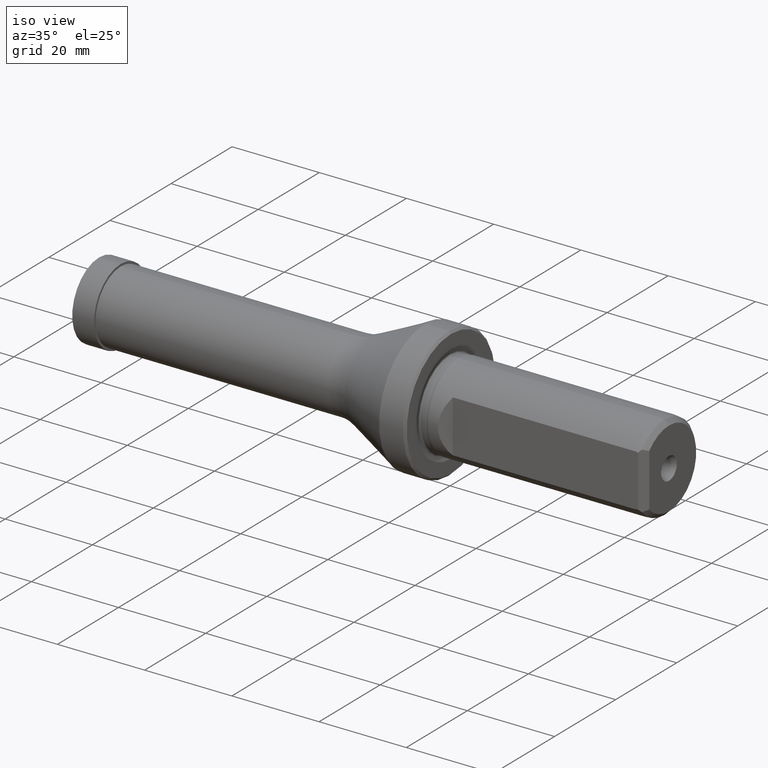
[diagram: clean part render]
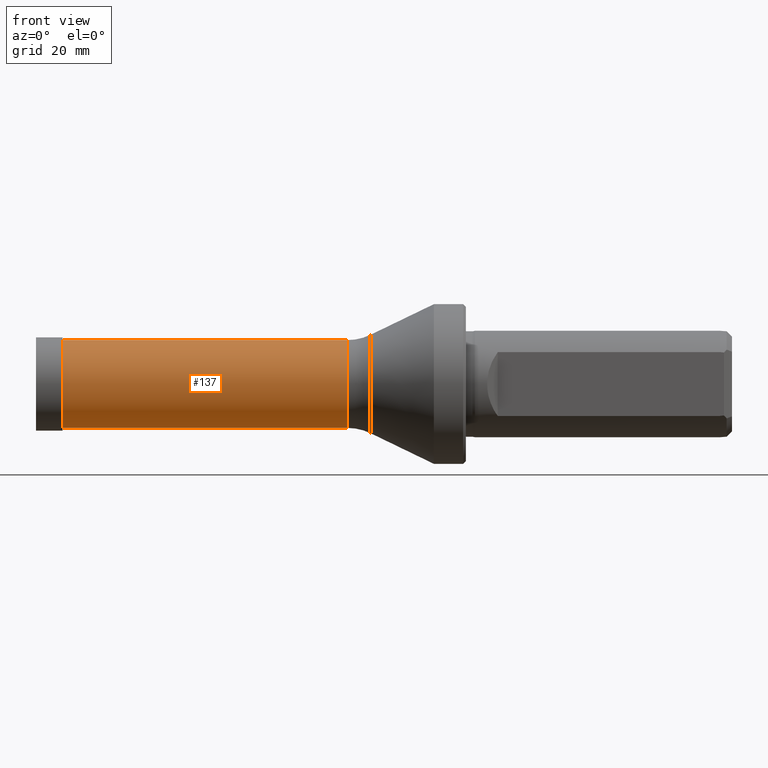
[diagram: tour spotlight — one face highlighted and labeled with its STEP entity id]
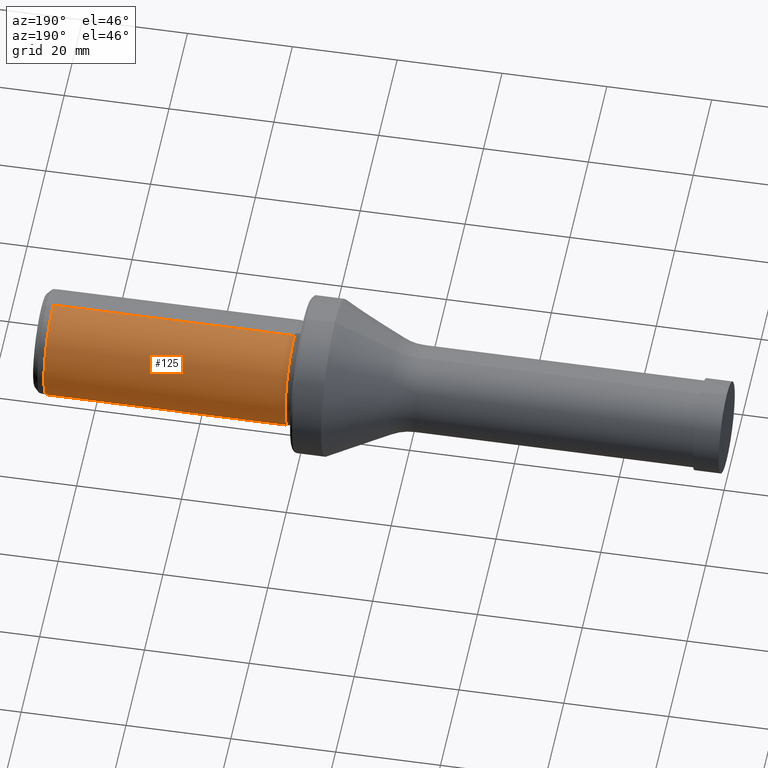
[diagram: tour spotlight — one face highlighted and labeled with its STEP entity id]
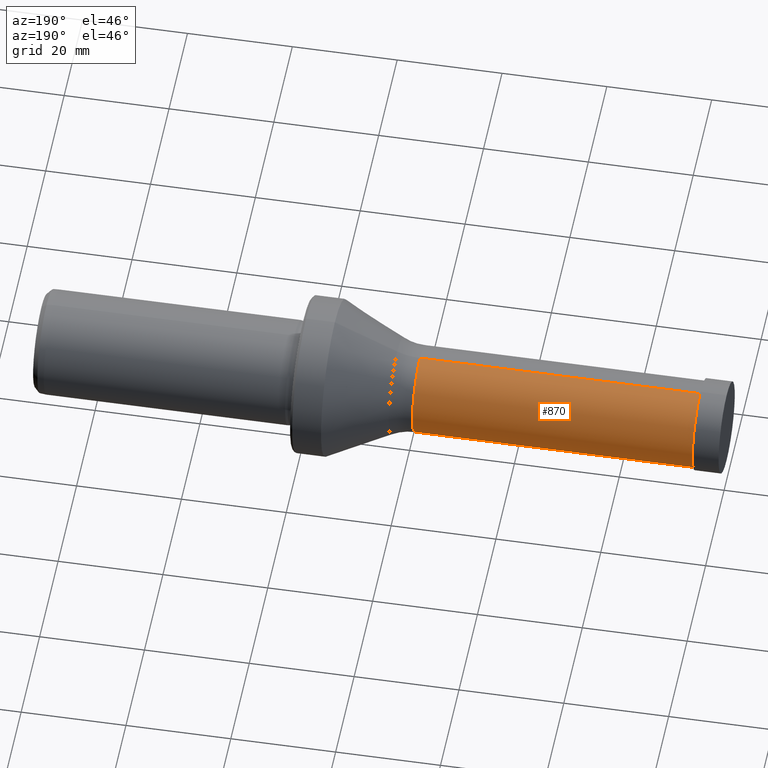
[diagram: tour spotlight — one face highlighted and labeled with its STEP entity id]
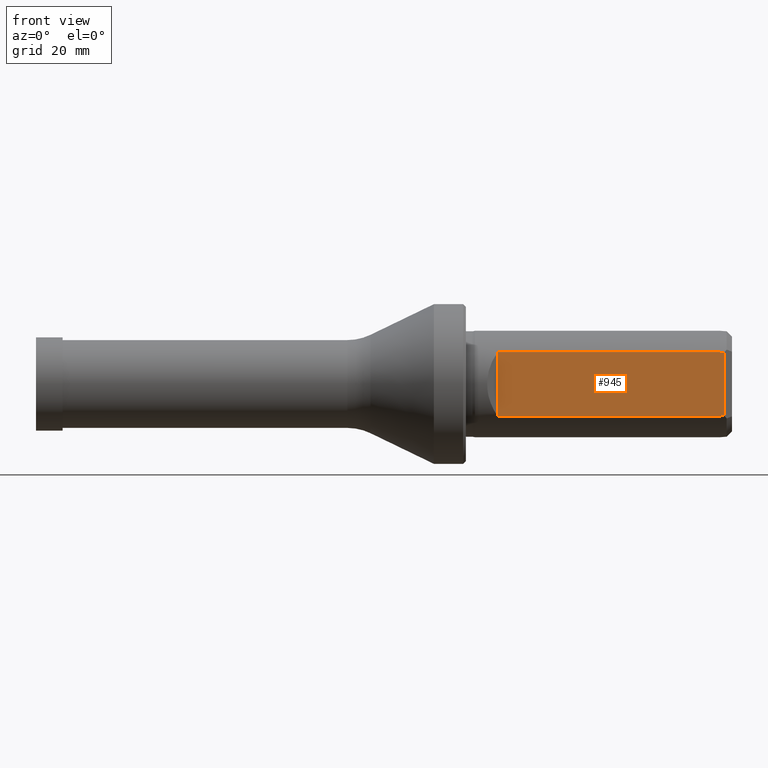
[diagram: tour spotlight — one face highlighted and labeled with its STEP entity id]
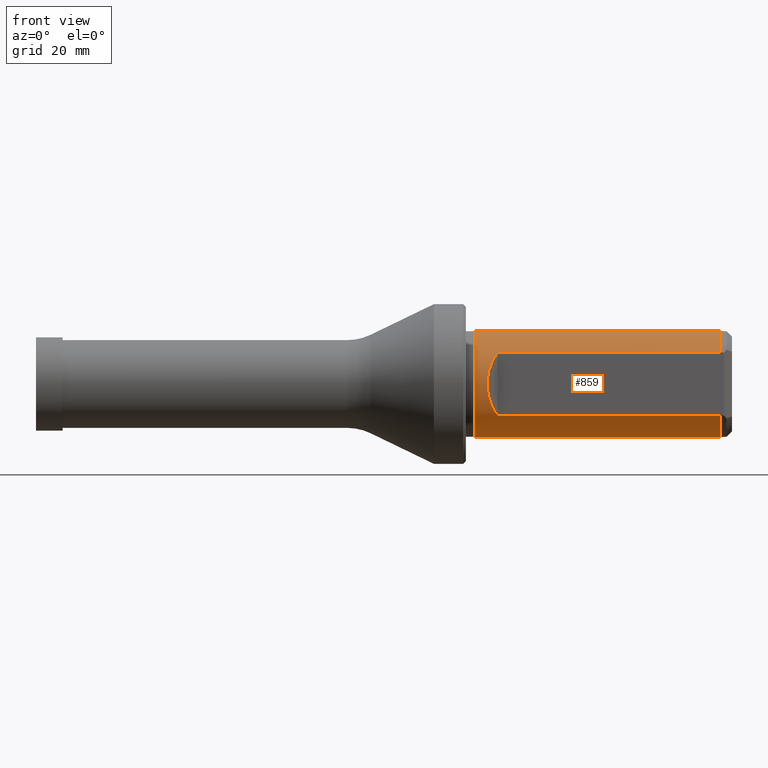
[diagram: tour spotlight — one face highlighted and labeled with its STEP entity id]
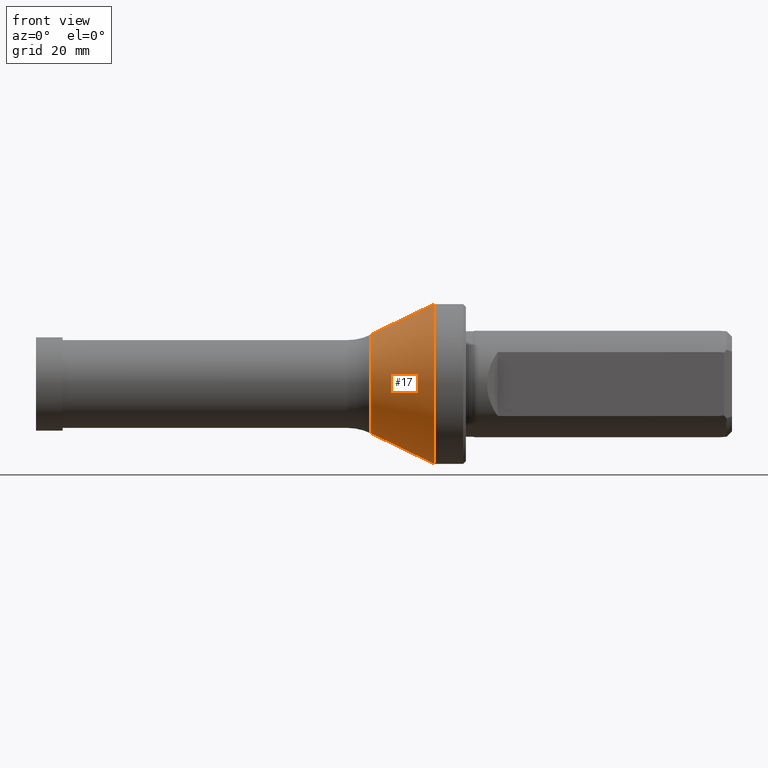
[diagram: tour spotlight — one face highlighted and labeled with its STEP entity id]
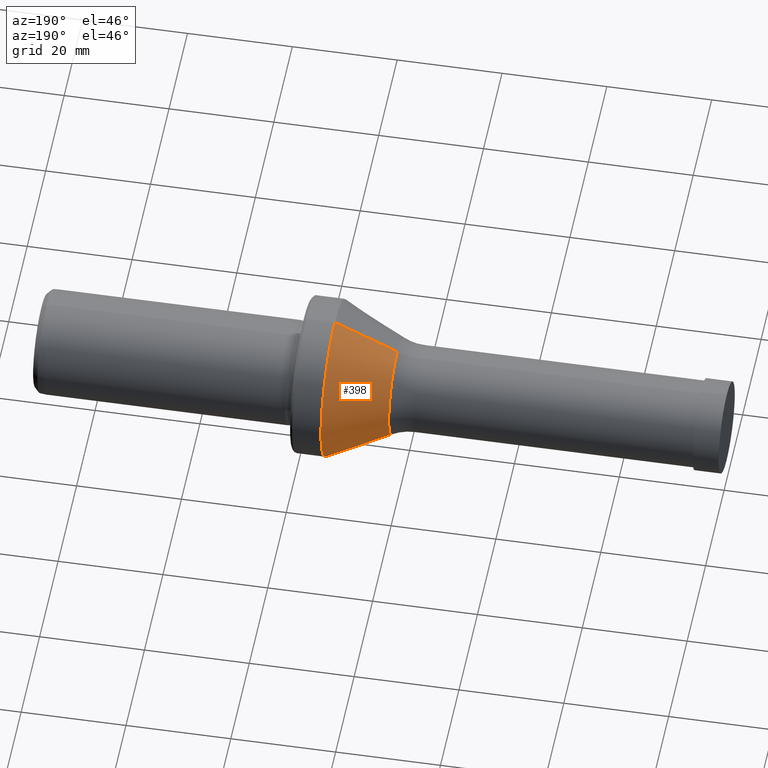
[diagram: tour spotlight — one face highlighted and labeled with its STEP entity id]
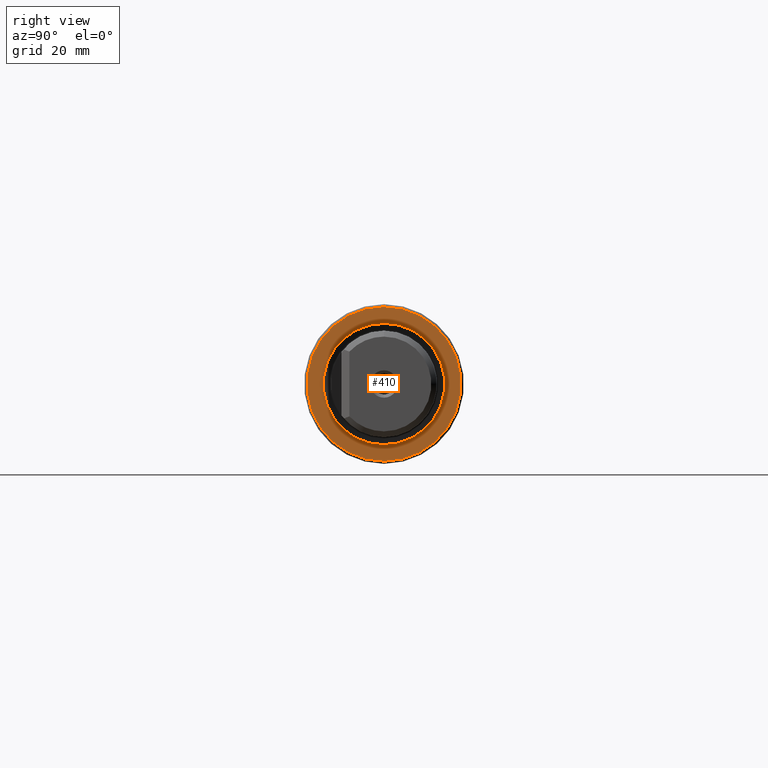
[diagram: tour spotlight — one face highlighted and labeled with its STEP entity id]
A machine part: a face-by-face anatomy tour. The part has 45 B-rep faces; the first image is the clean iso view, then the 8 largest visible faces are spotlighted one at a time (largest first), each with its STEP entity span.

Face 1 — front view, entity #137. In plain terms, the highlighted cylindrical surface (partial cylindrical patch) has radius 8.25 mm, axis along (-1, -0, -0).
Definition (entity closure, byte-faithful):
#8 = ORIENTED_EDGE ( 'NONE', *, *, #1138, .F. ) ;
#12 = VERTEX_POINT ( 'NONE', #141 ) ;
#18 = CARTESIAN_POINT ( 'NONE',  ( 4.500000000000000000, 0.0000000000000000000, 0.0000000000000000000 ) ) ;
#38 = VERTEX_POINT ( 'NONE', #933 ) ;
#59 = DIRECTION ( 'NONE',  ( 0.0000000000000000000, 0.0000000000000000000, 1.000000000000000000 ) ) ;
#137 = ADVANCED_FACE ( 'NONE', ( #457 ), #210, .T. ) ;
#141 = CARTESIAN_POINT ( 'NONE',  ( 4.500000000000000000, 1.010333609296566500E-015, -8.250000000000000000 ) ) ;
#154 = VERTEX_POINT ( 'NONE', #409 ) ;
#210 = CYLINDRICAL_SURFACE ( 'NONE', #572, 8.250000000000000000 ) ;
#254 = EDGE_CURVE ( 'NONE', #38, #154, #531, .T. ) ;
#269 = CARTESIAN_POINT ( 'NONE',  ( 4.500000000000000000, 0.0000000000000000000, 8.250000000000000000 ) ) ;
#272 = DIRECTION ( 'NONE',  ( 0.0000000000000000000, 0.0000000000000000000, 1.000000000000000000 ) ) ;
#286 = AXIS2_PLACEMENT_3D ( 'NONE', #18, #982, #59 ) ;
#409 = CARTESIAN_POINT ( 'NONE',  ( 57.99799999999999000, 0.0000000000000000000, 8.250000000000000000 ) ) ;
#423 = DIRECTION ( 'NONE',  ( -1.000000000000000000, -0.0000000000000000000, -0.0000000000000000000 ) ) ;
#425 = EDGE_CURVE ( 'NONE', #12, #914, #1116, .T. ) ;
#457 = FACE_OUTER_BOUND ( 'NONE', #1003, .T. ) ;
#531 = CIRCLE ( 'NONE', #889, 8.250000000000000000 ) ;
#544 = ORIENTED_EDGE ( 'NONE', *, *, #1153, .T. ) ;
#558 = DIRECTION ( 'NONE',  ( -1.000000000000000000, -0.0000000000000000000, -0.0000000000000000000 ) ) ;
#572 = AXIS2_PLACEMENT_3D ( 'NONE', #789, #624, #272 ) ;
#595 = DIRECTION ( 'NONE',  ( 0.0000000000000000000, 0.0000000000000000000, 1.000000000000000000 ) ) ;
#624 = DIRECTION ( 'NONE',  ( -1.000000000000000000, -0.0000000000000000000, -0.0000000000000000000 ) ) ;
#651 = ORIENTED_EDGE ( 'NONE', *, *, #254, .T. ) ;
#777 = DIRECTION ( 'NONE',  ( -1.000000000000000000, -0.0000000000000000000, -0.0000000000000000000 ) ) ;
#789 = CARTESIAN_POINT ( 'NONE',  ( 0.0000000000000000000, 0.0000000000000000000, 0.0000000000000000000 ) ) ;
#889 = AXIS2_PLACEMENT_3D ( 'NONE', #1182, #423, #595 ) ;
#914 = VERTEX_POINT ( 'NONE', #269 ) ;
#917 = CARTESIAN_POINT ( 'NONE',  ( 0.0000000000000000000, 1.010333609296566500E-015, -8.250000000000000000 ) ) ;
#933 = CARTESIAN_POINT ( 'NONE',  ( 57.99799999999999000, 1.010333609296566500E-015, -8.250000000000000000 ) ) ;
#951 = ORIENTED_EDGE ( 'NONE', *, *, #425, .F. ) ;
#982 = DIRECTION ( 'NONE',  ( -1.000000000000000000, 0.0000000000000000000, 0.0000000000000000000 ) ) ;
#1003 = EDGE_LOOP ( 'NONE', ( #8, #651, #544, #951 ) ) ;
#1116 = CIRCLE ( 'NONE', #286, 8.250000000000000000 ) ;
#1138 = EDGE_CURVE ( 'NONE', #38, #12, #1144, .T. ) ;
#1140 = VECTOR ( 'NONE', #777, 1000.000000000000000 ) ;
#1144 = LINE ( 'NONE', #917, #1178 ) ;
#1153 = EDGE_CURVE ( 'NONE', #154, #914, #1163, .T. ) ;
#1163 = LINE ( 'NONE', #1185, #1140 ) ;
#1178 = VECTOR ( 'NONE', #558, 1000.000000000000000 ) ;
#1182 = CARTESIAN_POINT ( 'NONE',  ( 57.99799999999999000, 0.0000000000000000000, 0.0000000000000000000 ) ) ;
#1185 = CARTESIAN_POINT ( 'NONE',  ( 0.0000000000000000000, 0.0000000000000000000, 8.250000000000000000 ) ) ;

Face 2 — auxiliary view, entity #125. In plain terms, the highlighted cylindrical surface (partial cylindrical patch) has radius 10 mm, axis along (-1, -0, -0).
Definition (entity closure, byte-faithful):
#87 = DIRECTION ( 'NONE',  ( -1.000000000000000000, -0.0000000000000000000, -0.0000000000000000000 ) ) ;
#101 = ORIENTED_EDGE ( 'NONE', *, *, #131, .T. ) ;
#112 = CARTESIAN_POINT ( 'NONE',  ( 128.0000000000001700, 0.0000000000000000000, 0.0000000000000000000 ) ) ;
#125 = ADVANCED_FACE ( 'NONE', ( #1037 ), #736, .T. ) ;
#131 = EDGE_CURVE ( 'NONE', #577, #668, #682, .T. ) ;
#133 = CARTESIAN_POINT ( 'NONE',  ( 128.0000000000001700, 0.0000000000000000000, 10.00000000000000000 ) ) ;
#160 = DIRECTION ( 'NONE',  ( 0.0000000000000000000, 0.0000000000000000000, 1.000000000000000000 ) ) ;
#217 = ORIENTED_EDGE ( 'NONE', *, *, #229, .T. ) ;
#225 = VECTOR ( 'NONE', #740, 1000.000000000000000 ) ;
#229 = EDGE_CURVE ( 'NONE', #1220, #1125, #701, .T. ) ;
#253 = CARTESIAN_POINT ( 'NONE',  ( 81.97953698905210700, 0.0000000000000000000, -10.00000000000000000 ) ) ;
#275 = LINE ( 'NONE', #1134, #225 ) ;
#367 = CARTESIAN_POINT ( 'NONE',  ( -0.5000000000000005600, 0.0000000000000000000, 10.00000000000000000 ) ) ;
#371 = DIRECTION ( 'NONE',  ( -1.000000000000000000, -0.0000000000000000000, -0.0000000000000000000 ) ) ;
#449 = AXIS2_PLACEMENT_3D ( 'NONE', #971, #371, #667 ) ;
#478 = AXIS2_PLACEMENT_3D ( 'NONE', #1218, #867, #728 ) ;
#480 = LINE ( 'NONE', #367, #985 ) ;
#507 = EDGE_CURVE ( 'NONE', #1220, #668, #480, .T. ) ;
#577 = VERTEX_POINT ( 'NONE', #253 ) ;
#614 = CARTESIAN_POINT ( 'NONE',  ( 128.0000000000001700, 1.224646799147353300E-015, -10.00000000000000000 ) ) ;
#649 = DIRECTION ( 'NONE',  ( -1.000000000000000000, -0.0000000000000000000, -0.0000000000000000000 ) ) ;
#667 = DIRECTION ( 'NONE',  ( 0.0000000000000000000, 0.0000000000000000000, 1.000000000000000000 ) ) ;
#668 = VERTEX_POINT ( 'NONE', #1008 ) ;
#672 = EDGE_LOOP ( 'NONE', ( #217, #1193, #101, #831 ) ) ;
#682 = CIRCLE ( 'NONE', #478, 10.00000000000000000 ) ;
#701 = CIRCLE ( 'NONE', #909, 10.00000000000000000 ) ;
#728 = DIRECTION ( 'NONE',  ( 0.0000000000000000000, 0.0000000000000000000, -1.000000000000000000 ) ) ;
#736 = CYLINDRICAL_SURFACE ( 'NONE', #449, 10.00000000000000000 ) ;
#740 = DIRECTION ( 'NONE',  ( -1.000000000000000000, -0.0000000000000000000, -0.0000000000000000000 ) ) ;
#831 = ORIENTED_EDGE ( 'NONE', *, *, #507, .F. ) ;
#867 = DIRECTION ( 'NONE',  ( 1.000000000000000000, -0.0000000000000000000, -0.0000000000000000000 ) ) ;
#909 = AXIS2_PLACEMENT_3D ( 'NONE', #112, #87, #160 ) ;
#915 = EDGE_CURVE ( 'NONE', #1125, #577, #275, .T. ) ;
#971 = CARTESIAN_POINT ( 'NONE',  ( -0.5000000000000005600, 0.0000000000000000000, 0.0000000000000000000 ) ) ;
#985 = VECTOR ( 'NONE', #649, 1000.000000000000000 ) ;
#1008 = CARTESIAN_POINT ( 'NONE',  ( 81.97953698905210700, 1.224646799147353500E-015, 10.00000000000000000 ) ) ;
#1037 = FACE_OUTER_BOUND ( 'NONE', #672, .T. ) ;
#1125 = VERTEX_POINT ( 'NONE', #614 ) ;
#1134 = CARTESIAN_POINT ( 'NONE',  ( -0.5000000000000005600, 1.224646799147353300E-015, -10.00000000000000000 ) ) ;
#1193 = ORIENTED_EDGE ( 'NONE', *, *, #915, .T. ) ;
#1218 = CARTESIAN_POINT ( 'NONE',  ( 81.97953698905210700, 0.0000000000000000000, 0.0000000000000000000 ) ) ;
#1220 = VERTEX_POINT ( 'NONE', #133 ) ;

Face 3 — auxiliary view, entity #870. In plain terms, the highlighted cylindrical surface (partial cylindrical patch) has radius 8.25 mm, axis along (-1, -0, -0).
Definition (entity closure, byte-faithful):
#12 = VERTEX_POINT ( 'NONE', #141 ) ;
#38 = VERTEX_POINT ( 'NONE', #933 ) ;
#68 = ORIENTED_EDGE ( 'NONE', *, *, #1138, .T. ) ;
#71 = ORIENTED_EDGE ( 'NONE', *, *, #340, .T. ) ;
#90 = DIRECTION ( 'NONE',  ( -1.000000000000000000, 0.0000000000000000000, 0.0000000000000000000 ) ) ;
#122 = CIRCLE ( 'NONE', #977, 8.250000000000000000 ) ;
#141 = CARTESIAN_POINT ( 'NONE',  ( 4.500000000000000000, 1.010333609296566500E-015, -8.250000000000000000 ) ) ;
#154 = VERTEX_POINT ( 'NONE', #409 ) ;
#170 = DIRECTION ( 'NONE',  ( 0.0000000000000000000, 0.0000000000000000000, 1.000000000000000000 ) ) ;
#223 = EDGE_CURVE ( 'NONE', #914, #12, #122, .T. ) ;
#269 = CARTESIAN_POINT ( 'NONE',  ( 4.500000000000000000, 0.0000000000000000000, 8.250000000000000000 ) ) ;
#339 = DIRECTION ( 'NONE',  ( 0.0000000000000000000, 0.0000000000000000000, 1.000000000000000000 ) ) ;
#340 = EDGE_CURVE ( 'NONE', #154, #38, #879, .T. ) ;
#408 = DIRECTION ( 'NONE',  ( 0.0000000000000000000, 0.0000000000000000000, 1.000000000000000000 ) ) ;
#409 = CARTESIAN_POINT ( 'NONE',  ( 57.99799999999999000, 0.0000000000000000000, 8.250000000000000000 ) ) ;
#424 = CYLINDRICAL_SURFACE ( 'NONE', #1009, 8.250000000000000000 ) ;
#434 = ORIENTED_EDGE ( 'NONE', *, *, #1153, .F. ) ;
#448 = DIRECTION ( 'NONE',  ( -1.000000000000000000, -0.0000000000000000000, -0.0000000000000000000 ) ) ;
#558 = DIRECTION ( 'NONE',  ( -1.000000000000000000, -0.0000000000000000000, -0.0000000000000000000 ) ) ;
#575 = ORIENTED_EDGE ( 'NONE', *, *, #223, .F. ) ;
#697 = FACE_OUTER_BOUND ( 'NONE', #709, .T. ) ;
#700 = AXIS2_PLACEMENT_3D ( 'NONE', #1117, #448, #170 ) ;
#709 = EDGE_LOOP ( 'NONE', ( #71, #68, #575, #434 ) ) ;
#777 = DIRECTION ( 'NONE',  ( -1.000000000000000000, -0.0000000000000000000, -0.0000000000000000000 ) ) ;
#792 = DIRECTION ( 'NONE',  ( -1.000000000000000000, -0.0000000000000000000, -0.0000000000000000000 ) ) ;
#870 = ADVANCED_FACE ( 'NONE', ( #697 ), #424, .T. ) ;
#879 = CIRCLE ( 'NONE', #700, 8.250000000000000000 ) ;
#914 = VERTEX_POINT ( 'NONE', #269 ) ;
#917 = CARTESIAN_POINT ( 'NONE',  ( 0.0000000000000000000, 1.010333609296566500E-015, -8.250000000000000000 ) ) ;
#933 = CARTESIAN_POINT ( 'NONE',  ( 57.99799999999999000, 1.010333609296566500E-015, -8.250000000000000000 ) ) ;
#977 = AXIS2_PLACEMENT_3D ( 'NONE', #1212, #90, #339 ) ;
#1009 = AXIS2_PLACEMENT_3D ( 'NONE', #1111, #792, #408 ) ;
#1111 = CARTESIAN_POINT ( 'NONE',  ( 0.0000000000000000000, 0.0000000000000000000, 0.0000000000000000000 ) ) ;
#1117 = CARTESIAN_POINT ( 'NONE',  ( 57.99799999999999000, 0.0000000000000000000, 0.0000000000000000000 ) ) ;
#1138 = EDGE_CURVE ( 'NONE', #38, #12, #1144, .T. ) ;
#1140 = VECTOR ( 'NONE', #777, 1000.000000000000000 ) ;
#1144 = LINE ( 'NONE', #917, #1178 ) ;
#1153 = EDGE_CURVE ( 'NONE', #154, #914, #1163, .T. ) ;
#1163 = LINE ( 'NONE', #1185, #1140 ) ;
#1178 = VECTOR ( 'NONE', #558, 1000.000000000000000 ) ;
#1185 = CARTESIAN_POINT ( 'NONE',  ( 0.0000000000000000000, 0.0000000000000000000, 8.250000000000000000 ) ) ;
#1212 = CARTESIAN_POINT ( 'NONE',  ( 4.500000000000000000, 0.0000000000000000000, 0.0000000000000000000 ) ) ;

Face 4 — front view, entity #945. In plain terms, the highlighted planar face has unit normal (0, 1, 0).
Definition (entity closure, byte-faithful):
#28 = B_SPLINE_CURVE_WITH_KNOTS ( 'NONE', 3,
 ( #657, #124, #110, #643 ),
 .UNSPECIFIED., .F., .F.,
 ( 4, 4 ),
 ( 0.01829642709403095000, 0.01905308713919414200 ),
 .UNSPECIFIED. ) ;
#30 = DIRECTION ( 'NONE',  ( -0.0000000000000000000, -0.0000000000000000000, 1.000000000000000000 ) ) ;
#33 = EDGE_CURVE ( 'NONE', #1059, #547, #862, .T. ) ;
#34 = CARTESIAN_POINT ( 'NONE',  ( 128.2500230110917400, -7.999999999999998200, -5.966663598521138900 ) ) ;
#41 = CARTESIAN_POINT ( 'NONE',  ( 86.25000000000001400, -7.999999999999989300, -6.000000000000043500 ) ) ;
#47 = ORIENTED_EDGE ( 'NONE', *, *, #869, .F. ) ;
#64 = CARTESIAN_POINT ( 'NONE',  ( 127.9999999999805500, -7.999999999999998200, -6.000000000002616600 ) ) ;
#92 = VERTEX_POINT ( 'NONE', #240 ) ;
#110 = CARTESIAN_POINT ( 'NONE',  ( 128.5000293310093600, -7.999999999999998200, 5.933151661774250100 ) ) ;
#124 = CARTESIAN_POINT ( 'NONE',  ( 128.2500258343678800, -7.999999999999998200, 5.966663222084309700 ) ) ;
#155 = DIRECTION ( 'NONE',  ( -1.000000000000000000, -0.0000000000000000000, -0.0000000000000000000 ) ) ;
#240 = CARTESIAN_POINT ( 'NONE',  ( 86.25000000000001400, -7.999999999999989300, 6.000000000000032900 ) ) ;
#262 = PLANE ( 'NONE',  #1187 ) ;
#276 = CARTESIAN_POINT ( 'NONE',  ( 128.7500000000000300, -7.999999999999998200, -5.899457602186857700 ) ) ;
#280 = FACE_OUTER_BOUND ( 'NONE', #551, .T. ) ;
#282 = CARTESIAN_POINT ( 'NONE',  ( 128.0000000000001400, -7.999999999999998200, 6.000000000000005300 ) ) ;
#325 = ORIENTED_EDGE ( 'NONE', *, *, #510, .F. ) ;
#362 = EDGE_CURVE ( 'NONE', #863, #547, #963, .T. ) ;
#414 = EDGE_CURVE ( 'NONE', #422, #92, #665, .T. ) ;
#421 = LINE ( 'NONE', #787, #687 ) ;
#422 = VERTEX_POINT ( 'NONE', #282 ) ;
#436 = ORIENTED_EDGE ( 'NONE', *, *, #362, .F. ) ;
#454 = ORIENTED_EDGE ( 'NONE', *, *, #33, .T. ) ;
#498 = VECTOR ( 'NONE', #1093, 1000.000000000000000 ) ;
#503 = CARTESIAN_POINT ( 'NONE',  ( 128.7500000000000300, -7.999999999999998200, -13.99999999999999800 ) ) ;
#510 = EDGE_CURVE ( 'NONE', #1059, #92, #421, .T. ) ;
#529 = DIRECTION ( 'NONE',  ( 1.000000000000000000, 0.0000000000000000000, 0.0000000000000000000 ) ) ;
#547 = VERTEX_POINT ( 'NONE', #64 ) ;
#551 = EDGE_LOOP ( 'NONE', ( #454, #436, #733, #47, #617, #325 ) ) ;
#584 = CARTESIAN_POINT ( 'NONE',  ( -0.5000000000000022200, -7.999999999999968900, 6.000000000000040000 ) ) ;
#617 = ORIENTED_EDGE ( 'NONE', *, *, #414, .T. ) ;
#640 = CARTESIAN_POINT ( 'NONE',  ( 128.7500000000000300, -7.999999999999998200, 5.899457602186855900 ) ) ;
#643 = CARTESIAN_POINT ( 'NONE',  ( 128.7500000000000300, -7.999999999999998200, 5.899457602186855900 ) ) ;
#657 = CARTESIAN_POINT ( 'NONE',  ( 128.0000000000001400, -7.999999999999998200, 6.000000000000005300 ) ) ;
#665 = LINE ( 'NONE', #584, #918 ) ;
#677 = VERTEX_POINT ( 'NONE', #640 ) ;
#679 = EDGE_CURVE ( 'NONE', #863, #677, #1095, .T. ) ;
#687 = VECTOR ( 'NONE', #30, 1000.000000000000000 ) ;
#706 = CARTESIAN_POINT ( 'NONE',  ( 128.5000244501772500, -7.999999999999998200, -5.933152319671626700 ) ) ;
#733 = ORIENTED_EDGE ( 'NONE', *, *, #679, .T. ) ;
#746 = CARTESIAN_POINT ( 'NONE',  ( 128.7500000000000300, -7.999999999999998200, -13.99999999999999800 ) ) ;
#787 = CARTESIAN_POINT ( 'NONE',  ( 86.25000000000001400, -7.999999999999989300, -13.99999999999999800 ) ) ;
#796 = VECTOR ( 'NONE', #529, 1000.000000000000000 ) ;
#862 = LINE ( 'NONE', #1014, #796 ) ;
#863 = VERTEX_POINT ( 'NONE', #276 ) ;
#869 = EDGE_CURVE ( 'NONE', #422, #677, #28, .T. ) ;
#918 = VECTOR ( 'NONE', #155, 1000.000000000000000 ) ;
#945 = ADVANCED_FACE ( 'NONE', ( #280 ), #262, .F. ) ;
#947 = DIRECTION ( 'NONE',  ( -1.000000000000000000, 2.040851148208007800E-016, 0.0000000000000000000 ) ) ;
#963 = B_SPLINE_CURVE_WITH_KNOTS ( 'NONE', 3,
 ( #1092, #706, #34, #1219 ),
 .UNSPECIFIED., .F., .F.,
 ( 4, 4 ),
 ( 0.01794528020322219300, 0.01870162634605476700 ),
 .UNSPECIFIED. ) ;
#1014 = CARTESIAN_POINT ( 'NONE',  ( -0.5000000000000022200, -7.999999999999968900, -6.000000000000040000 ) ) ;
#1023 = DIRECTION ( 'NONE',  ( 2.040851148208007800E-016, 1.000000000000000000, 0.0000000000000000000 ) ) ;
#1059 = VERTEX_POINT ( 'NONE', #41 ) ;
#1092 = CARTESIAN_POINT ( 'NONE',  ( 128.7500000000000300, -7.999999999999998200, -5.899457602186857700 ) ) ;
#1093 = DIRECTION ( 'NONE',  ( -0.0000000000000000000, -0.0000000000000000000, 1.000000000000000000 ) ) ;
#1095 = LINE ( 'NONE', #503, #498 ) ;
#1187 = AXIS2_PLACEMENT_3D ( 'NONE', #746, #1023, #947 ) ;
#1219 = CARTESIAN_POINT ( 'NONE',  ( 127.9999999999805500, -7.999999999999998200, -6.000000000002616600 ) ) ;

Face 5 — front view, entity #859. In plain terms, the highlighted cylindrical surface (partial cylindrical patch) has radius 10 mm, axis along (-1, -0, -0).
Definition (entity closure, byte-faithful):
#33 = EDGE_CURVE ( 'NONE', #1059, #547, #862, .T. ) ;
#41 = CARTESIAN_POINT ( 'NONE',  ( 86.25000000000001400, -7.999999999999989300, -6.000000000000043500 ) ) ;
#64 = CARTESIAN_POINT ( 'NONE',  ( 127.9999999999805500, -7.999999999999998200, -6.000000000002616600 ) ) ;
#92 = VERTEX_POINT ( 'NONE', #240 ) ;
#104 = DIRECTION ( 'NONE',  ( 0.0000000000000000000, 0.0000000000000000000, 1.000000000000000000 ) ) ;
#133 = CARTESIAN_POINT ( 'NONE',  ( 128.0000000000001700, 0.0000000000000000000, 10.00000000000000000 ) ) ;
#143 = ORIENTED_EDGE ( 'NONE', *, *, #843, .T. ) ;
#155 = DIRECTION ( 'NONE',  ( -1.000000000000000000, -0.0000000000000000000, -0.0000000000000000000 ) ) ;
#159 =( BOUNDED_CURVE ( )  B_SPLINE_CURVE ( 3, ( #731, #181, #413, #1199 ),
 .UNSPECIFIED., .F., .F. ) 
 B_SPLINE_CURVE_WITH_KNOTS ( ( 4, 4 ),
 ( 5.639684198386298400, 6.926686415972874000 ),
 .UNSPECIFIED. ) 
 CURVE ( )  GEOMETRIC_REPRESENTATION_ITEM ( )  RATIONAL_B_SPLINE_CURVE ( ( 1.000000000000000000, 0.8666666666666653600, 0.8666666666666653600, 1.000000000000000000 ) ) 
 REPRESENTATION_ITEM ( '' )  );
#168 = CIRCLE ( 'NONE', #552, 10.00000000000000000 ) ;
#181 = CARTESIAN_POINT ( 'NONE',  ( 83.48076923076921200, -10.76923076923077700, 2.307692307692326600 ) ) ;
#186 = DIRECTION ( 'NONE',  ( 0.0000000000000000000, 0.0000000000000000000, 1.000000000000000000 ) ) ;
#225 = VECTOR ( 'NONE', #740, 1000.000000000000000 ) ;
#227 = FACE_OUTER_BOUND ( 'NONE', #239, .T. ) ;
#239 = EDGE_LOOP ( 'NONE', ( #1064, #143, #887, #880, #1112, #537, #559, #568 ) ) ;
#240 = CARTESIAN_POINT ( 'NONE',  ( 86.25000000000001400, -7.999999999999989300, 6.000000000000032900 ) ) ;
#253 = CARTESIAN_POINT ( 'NONE',  ( 81.97953698905210700, 0.0000000000000000000, -10.00000000000000000 ) ) ;
#257 = EDGE_CURVE ( 'NONE', #668, #577, #718, .T. ) ;
#275 = LINE ( 'NONE', #1134, #225 ) ;
#282 = CARTESIAN_POINT ( 'NONE',  ( 128.0000000000001400, -7.999999999999998200, 6.000000000000005300 ) ) ;
#287 = AXIS2_PLACEMENT_3D ( 'NONE', #332, #1019, #104 ) ;
#329 = CARTESIAN_POINT ( 'NONE',  ( 81.97953698905210700, 0.0000000000000000000, 0.0000000000000000000 ) ) ;
#332 = CARTESIAN_POINT ( 'NONE',  ( 128.0000000000001700, 0.0000000000000000000, 0.0000000000000000000 ) ) ;
#336 = DIRECTION ( 'NONE',  ( -1.000000000000000000, -0.0000000000000000000, -0.0000000000000000000 ) ) ;
#367 = CARTESIAN_POINT ( 'NONE',  ( -0.5000000000000005600, 0.0000000000000000000, 10.00000000000000000 ) ) ;
#413 = CARTESIAN_POINT ( 'NONE',  ( 83.48076923076921200, -10.76923076923077700, -2.307692307692323500 ) ) ;
#414 = EDGE_CURVE ( 'NONE', #422, #92, #665, .T. ) ;
#422 = VERTEX_POINT ( 'NONE', #282 ) ;
#430 = DIRECTION ( 'NONE',  ( 0.0000000000000000000, 0.0000000000000000000, 1.000000000000000000 ) ) ;
#480 = LINE ( 'NONE', #367, #985 ) ;
#493 = DIRECTION ( 'NONE',  ( 0.0000000000000000000, 0.0000000000000000000, -1.000000000000000000 ) ) ;
#507 = EDGE_CURVE ( 'NONE', #1220, #668, #480, .T. ) ;
#529 = DIRECTION ( 'NONE',  ( 1.000000000000000000, 0.0000000000000000000, 0.0000000000000000000 ) ) ;
#537 = ORIENTED_EDGE ( 'NONE', *, *, #1214, .T. ) ;
#547 = VERTEX_POINT ( 'NONE', #64 ) ;
#552 = AXIS2_PLACEMENT_3D ( 'NONE', #1161, #336, #186 ) ;
#559 = ORIENTED_EDGE ( 'NONE', *, *, #507, .T. ) ;
#568 = ORIENTED_EDGE ( 'NONE', *, *, #257, .T. ) ;
#577 = VERTEX_POINT ( 'NONE', #253 ) ;
#584 = CARTESIAN_POINT ( 'NONE',  ( -0.5000000000000022200, -7.999999999999968900, 6.000000000000040000 ) ) ;
#614 = CARTESIAN_POINT ( 'NONE',  ( 128.0000000000001700, 1.224646799147353300E-015, -10.00000000000000000 ) ) ;
#645 = AXIS2_PLACEMENT_3D ( 'NONE', #329, #1208, #493 ) ;
#649 = DIRECTION ( 'NONE',  ( -1.000000000000000000, -0.0000000000000000000, -0.0000000000000000000 ) ) ;
#665 = LINE ( 'NONE', #584, #918 ) ;
#668 = VERTEX_POINT ( 'NONE', #1008 ) ;
#718 = CIRCLE ( 'NONE', #645, 10.00000000000000000 ) ;
#731 = CARTESIAN_POINT ( 'NONE',  ( 86.25000000000001400, -7.999999999999989300, 6.000000000000032900 ) ) ;
#740 = DIRECTION ( 'NONE',  ( -1.000000000000000000, -0.0000000000000000000, -0.0000000000000000000 ) ) ;
#796 = VECTOR ( 'NONE', #529, 1000.000000000000000 ) ;
#800 = CARTESIAN_POINT ( 'NONE',  ( -0.5000000000000005600, 0.0000000000000000000, 0.0000000000000000000 ) ) ;
#843 = EDGE_CURVE ( 'NONE', #1125, #547, #168, .T. ) ;
#855 = DIRECTION ( 'NONE',  ( -1.000000000000000000, -0.0000000000000000000, -0.0000000000000000000 ) ) ;
#859 = ADVANCED_FACE ( 'NONE', ( #227 ), #1197, .T. ) ;
#862 = LINE ( 'NONE', #1014, #796 ) ;
#880 = ORIENTED_EDGE ( 'NONE', *, *, #892, .F. ) ;
#887 = ORIENTED_EDGE ( 'NONE', *, *, #33, .F. ) ;
#892 = EDGE_CURVE ( 'NONE', #92, #1059, #159, .T. ) ;
#903 = AXIS2_PLACEMENT_3D ( 'NONE', #800, #855, #430 ) ;
#915 = EDGE_CURVE ( 'NONE', #1125, #577, #275, .T. ) ;
#918 = VECTOR ( 'NONE', #155, 1000.000000000000000 ) ;
#985 = VECTOR ( 'NONE', #649, 1000.000000000000000 ) ;
#1008 = CARTESIAN_POINT ( 'NONE',  ( 81.97953698905210700, 1.224646799147353500E-015, 10.00000000000000000 ) ) ;
#1014 = CARTESIAN_POINT ( 'NONE',  ( -0.5000000000000022200, -7.999999999999968900, -6.000000000000040000 ) ) ;
#1019 = DIRECTION ( 'NONE',  ( -1.000000000000000000, -0.0000000000000000000, -0.0000000000000000000 ) ) ;
#1059 = VERTEX_POINT ( 'NONE', #41 ) ;
#1064 = ORIENTED_EDGE ( 'NONE', *, *, #915, .F. ) ;
#1088 = CIRCLE ( 'NONE', #287, 10.00000000000000000 ) ;
#1112 = ORIENTED_EDGE ( 'NONE', *, *, #414, .F. ) ;
#1125 = VERTEX_POINT ( 'NONE', #614 ) ;
#1134 = CARTESIAN_POINT ( 'NONE',  ( -0.5000000000000005600, 1.224646799147353300E-015, -10.00000000000000000 ) ) ;
#1161 = CARTESIAN_POINT ( 'NONE',  ( 128.0000000000001700, 0.0000000000000000000, 0.0000000000000000000 ) ) ;
#1197 = CYLINDRICAL_SURFACE ( 'NONE', #903, 10.00000000000000000 ) ;
#1199 = CARTESIAN_POINT ( 'NONE',  ( 86.25000000000001400, -7.999999999999989300, -6.000000000000043500 ) ) ;
#1208 = DIRECTION ( 'NONE',  ( 1.000000000000000000, -0.0000000000000000000, -0.0000000000000000000 ) ) ;
#1214 = EDGE_CURVE ( 'NONE', #422, #1220, #1088, .T. ) ;
#1220 = VERTEX_POINT ( 'NONE', #133 ) ;

Face 6 — front view, entity #17. In plain terms, the highlighted conical surface has half-angle 25.803 deg.
Definition (entity closure, byte-faithful):
#17 = ADVANCED_FACE ( 'NONE', ( #220 ), #590, .T. ) ;
#63 = AXIS2_PLACEMENT_3D ( 'NONE', #799, #1044, #967 ) ;
#93 = CARTESIAN_POINT ( 'NONE',  ( 74.25000000000000000, 1.836970198721029200E-015, 14.99999999999999600 ) ) ;
#97 = CARTESIAN_POINT ( 'NONE',  ( 74.25000000000000000, 0.0000000000000000000, -14.99999999999999600 ) ) ;
#176 = DIRECTION ( 'NONE',  ( 1.000000000000000000, 0.0000000000000000000, 0.0000000000000000000 ) ) ;
#218 = VERTEX_POINT ( 'NONE', #93 ) ;
#220 = FACE_OUTER_BOUND ( 'NONE', #1145, .T. ) ;
#246 = VERTEX_POINT ( 'NONE', #1155 ) ;
#290 = CIRCLE ( 'NONE', #63, 9.247005972073663900 ) ;
#333 = VECTOR ( 'NONE', #929, 1000.000000000000000 ) ;
#346 = VERTEX_POINT ( 'NONE', #895 ) ;
#403 = DIRECTION ( 'NONE',  ( -1.000000000000000000, -0.0000000000000000000, -0.0000000000000000000 ) ) ;
#406 = CARTESIAN_POINT ( 'NONE',  ( 74.25000000000000000, 0.0000000000000000000, 0.0000000000000000000 ) ) ;
#452 = ORIENTED_EDGE ( 'NONE', *, *, #981, .T. ) ;
#506 = CARTESIAN_POINT ( 'NONE',  ( 74.25000000000000000, 1.836970198721029200E-015, 14.99999999999999600 ) ) ;
#555 = ORIENTED_EDGE ( 'NONE', *, *, #670, .F. ) ;
#564 = EDGE_CURVE ( 'NONE', #346, #218, #685, .T. ) ;
#590 = CONICAL_SURFACE ( 'NONE', #930, 14.99999999999999600, 0.4503394468634036600 ) ;
#596 = DIRECTION ( 'NONE',  ( 0.0000000000000000000, 0.0000000000000000000, 1.000000000000000000 ) ) ;
#630 = LINE ( 'NONE', #97, #900 ) ;
#648 = CARTESIAN_POINT ( 'NONE',  ( 62.35071162990642100, 0.0000000000000000000, 9.247005972073663900 ) ) ;
#670 = EDGE_CURVE ( 'NONE', #246, #1002, #290, .T. ) ;
#685 = CIRCLE ( 'NONE', #1133, 14.99999999999999600 ) ;
#735 = CARTESIAN_POINT ( 'NONE',  ( 74.25000000000000000, 0.0000000000000000000, 0.0000000000000000000 ) ) ;
#799 = CARTESIAN_POINT ( 'NONE',  ( 62.35071162990642100, 0.0000000000000000000, 0.0000000000000000000 ) ) ;
#895 = CARTESIAN_POINT ( 'NONE',  ( 74.25000000000000000, 0.0000000000000000000, -14.99999999999999600 ) ) ;
#900 = VECTOR ( 'NONE', #1025, 1000.000000000000000 ) ;
#920 = ORIENTED_EDGE ( 'NONE', *, *, #1021, .F. ) ;
#929 = DIRECTION ( 'NONE',  ( 0.9002994027926337600, 5.330534365176371000E-017, 0.4352711629906432200 ) ) ;
#930 = AXIS2_PLACEMENT_3D ( 'NONE', #735, #176, #1115 ) ;
#967 = DIRECTION ( 'NONE',  ( 0.0000000000000000000, 0.0000000000000000000, 1.000000000000000000 ) ) ;
#981 = EDGE_CURVE ( 'NONE', #246, #346, #630, .T. ) ;
#1002 = VERTEX_POINT ( 'NONE', #648 ) ;
#1021 = EDGE_CURVE ( 'NONE', #1002, #218, #1180, .T. ) ;
#1025 = DIRECTION ( 'NONE',  ( 0.9002994027926337600, 0.0000000000000000000, -0.4352711629906432200 ) ) ;
#1044 = DIRECTION ( 'NONE',  ( -1.000000000000000000, -0.0000000000000000000, -0.0000000000000000000 ) ) ;
#1115 = DIRECTION ( 'NONE',  ( 0.0000000000000000000, 0.0000000000000000000, -1.000000000000000000 ) ) ;
#1133 = AXIS2_PLACEMENT_3D ( 'NONE', #406, #403, #596 ) ;
#1139 = ORIENTED_EDGE ( 'NONE', *, *, #564, .T. ) ;
#1145 = EDGE_LOOP ( 'NONE', ( #920, #555, #452, #1139 ) ) ;
#1155 = CARTESIAN_POINT ( 'NONE',  ( 62.35071162990642100, 1.132431626539647100E-015, -9.247005972073663900 ) ) ;
#1180 = LINE ( 'NONE', #506, #333 ) ;

Face 7 — auxiliary view, entity #398. In plain terms, the highlighted conical surface has half-angle 25.803 deg.
Definition (entity closure, byte-faithful):
#93 = CARTESIAN_POINT ( 'NONE',  ( 74.25000000000000000, 1.836970198721029200E-015, 14.99999999999999600 ) ) ;
#97 = CARTESIAN_POINT ( 'NONE',  ( 74.25000000000000000, 0.0000000000000000000, -14.99999999999999600 ) ) ;
#218 = VERTEX_POINT ( 'NONE', #93 ) ;
#246 = VERTEX_POINT ( 'NONE', #1155 ) ;
#247 = CARTESIAN_POINT ( 'NONE',  ( 74.25000000000000000, 0.0000000000000000000, 0.0000000000000000000 ) ) ;
#295 = DIRECTION ( 'NONE',  ( -1.000000000000000000, -0.0000000000000000000, -0.0000000000000000000 ) ) ;
#303 = CARTESIAN_POINT ( 'NONE',  ( 62.35071162990642100, 0.0000000000000000000, 0.0000000000000000000 ) ) ;
#331 = DIRECTION ( 'NONE',  ( -1.000000000000000000, -0.0000000000000000000, -0.0000000000000000000 ) ) ;
#333 = VECTOR ( 'NONE', #929, 1000.000000000000000 ) ;
#346 = VERTEX_POINT ( 'NONE', #895 ) ;
#348 = AXIS2_PLACEMENT_3D ( 'NONE', #303, #295, #874 ) ;
#369 = CARTESIAN_POINT ( 'NONE',  ( 74.25000000000000000, 0.0000000000000000000, 0.0000000000000000000 ) ) ;
#398 = ADVANCED_FACE ( 'NONE', ( #823 ), #499, .T. ) ;
#455 = DIRECTION ( 'NONE',  ( 0.0000000000000000000, 0.0000000000000000000, -1.000000000000000000 ) ) ;
#466 = CIRCLE ( 'NONE', #348, 9.247005972073663900 ) ;
#489 = EDGE_CURVE ( 'NONE', #1002, #246, #466, .T. ) ;
#499 = CONICAL_SURFACE ( 'NONE', #1175, 14.99999999999999600, 0.4503394468634036600 ) ;
#506 = CARTESIAN_POINT ( 'NONE',  ( 74.25000000000000000, 1.836970198721029200E-015, 14.99999999999999600 ) ) ;
#511 = EDGE_LOOP ( 'NONE', ( #1171, #770, #1039, #1087 ) ) ;
#630 = LINE ( 'NONE', #97, #900 ) ;
#648 = CARTESIAN_POINT ( 'NONE',  ( 62.35071162990642100, 0.0000000000000000000, 9.247005972073663900 ) ) ;
#692 = AXIS2_PLACEMENT_3D ( 'NONE', #247, #331, #788 ) ;
#699 = CIRCLE ( 'NONE', #692, 14.99999999999999600 ) ;
#708 = EDGE_CURVE ( 'NONE', #218, #346, #699, .T. ) ;
#770 = ORIENTED_EDGE ( 'NONE', *, *, #1021, .T. ) ;
#788 = DIRECTION ( 'NONE',  ( 0.0000000000000000000, 0.0000000000000000000, 1.000000000000000000 ) ) ;
#823 = FACE_OUTER_BOUND ( 'NONE', #511, .T. ) ;
#874 = DIRECTION ( 'NONE',  ( 0.0000000000000000000, 0.0000000000000000000, 1.000000000000000000 ) ) ;
#895 = CARTESIAN_POINT ( 'NONE',  ( 74.25000000000000000, 0.0000000000000000000, -14.99999999999999600 ) ) ;
#900 = VECTOR ( 'NONE', #1025, 1000.000000000000000 ) ;
#929 = DIRECTION ( 'NONE',  ( 0.9002994027926337600, 5.330534365176371000E-017, 0.4352711629906432200 ) ) ;
#981 = EDGE_CURVE ( 'NONE', #246, #346, #630, .T. ) ;
#1002 = VERTEX_POINT ( 'NONE', #648 ) ;
#1021 = EDGE_CURVE ( 'NONE', #1002, #218, #1180, .T. ) ;
#1025 = DIRECTION ( 'NONE',  ( 0.9002994027926337600, 0.0000000000000000000, -0.4352711629906432200 ) ) ;
#1039 = ORIENTED_EDGE ( 'NONE', *, *, #708, .T. ) ;
#1087 = ORIENTED_EDGE ( 'NONE', *, *, #981, .F. ) ;
#1155 = CARTESIAN_POINT ( 'NONE',  ( 62.35071162990642100, 1.132431626539647100E-015, -9.247005972073663900 ) ) ;
#1157 = DIRECTION ( 'NONE',  ( 1.000000000000000000, 0.0000000000000000000, 0.0000000000000000000 ) ) ;
#1171 = ORIENTED_EDGE ( 'NONE', *, *, #489, .F. ) ;
#1175 = AXIS2_PLACEMENT_3D ( 'NONE', #369, #1157, #455 ) ;
#1180 = LINE ( 'NONE', #506, #333 ) ;

Face 8 — right view, entity #410. In plain terms, the highlighted planar face has unit normal (-1, 0, -0).
Definition (entity closure, byte-faithful):
#29 = CIRCLE ( 'NONE', #251, 11.40000000000001100 ) ;
#98 = VERTEX_POINT ( 'NONE', #846 ) ;
#103 = DIRECTION ( 'NONE',  ( 1.000000000000000000, 0.0000000000000000000, 0.0000000000000000000 ) ) ;
#132 = ORIENTED_EDGE ( 'NONE', *, *, #1184, .T. ) ;
#153 = CIRCLE ( 'NONE', #464, 11.40000000000001100 ) ;
#156 = FACE_OUTER_BOUND ( 'NONE', #1169, .T. ) ;
#206 = DIRECTION ( 'NONE',  ( 1.000000000000000000, -0.0000000000000000000, -0.0000000000000000000 ) ) ;
#209 = AXIS2_PLACEMENT_3D ( 'NONE', #752, #103, #829 ) ;
#211 = EDGE_CURVE ( 'NONE', #1046, #749, #833, .T. ) ;
#251 = AXIS2_PLACEMENT_3D ( 'NONE', #986, #356, #378 ) ;
#310 = EDGE_CURVE ( 'NONE', #1179, #98, #153, .T. ) ;
#328 = CARTESIAN_POINT ( 'NONE',  ( 80.25000000000000000, 1.806354028742344600E-015, -14.49999999999998600 ) ) ;
#351 = CARTESIAN_POINT ( 'NONE',  ( 80.25000000000000000, 0.0000000000000000000, 0.0000000000000000000 ) ) ;
#356 = DIRECTION ( 'NONE',  ( 1.000000000000000000, -0.0000000000000000000, -0.0000000000000000000 ) ) ;
#378 = DIRECTION ( 'NONE',  ( 0.0000000000000000000, 0.0000000000000000000, -1.000000000000000000 ) ) ;
#410 = ADVANCED_FACE ( 'NONE', ( #730, #156 ), #540, .F. ) ;
#432 = DIRECTION ( 'NONE',  ( -1.000000000000000000, 0.0000000000000000000, -0.0000000000000000000 ) ) ;
#464 = AXIS2_PLACEMENT_3D ( 'NONE', #896, #206, #563 ) ;
#540 = PLANE ( 'NONE',  #771 ) ;
#563 = DIRECTION ( 'NONE',  ( 0.0000000000000000000, 0.0000000000000000000, -1.000000000000000000 ) ) ;
#656 = CARTESIAN_POINT ( 'NONE',  ( 80.25000000000000000, 0.0000000000000000000, -11.40000000000001100 ) ) ;
#691 = DIRECTION ( 'NONE',  ( 0.0000000000000000000, 0.0000000000000000000, 1.000000000000000000 ) ) ;
#730 = FACE_BOUND ( 'NONE', #1072, .T. ) ;
#749 = VERTEX_POINT ( 'NONE', #328 ) ;
#750 = AXIS2_PLACEMENT_3D ( 'NONE', #351, #904, #691 ) ;
#752 = CARTESIAN_POINT ( 'NONE',  ( 80.25000000000000000, 0.0000000000000000000, 0.0000000000000000000 ) ) ;
#767 = CARTESIAN_POINT ( 'NONE',  ( 80.25000000000000000, 0.0000000000000000000, 14.49999999999998600 ) ) ;
#771 = AXIS2_PLACEMENT_3D ( 'NONE', #842, #432, #793 ) ;
#793 = DIRECTION ( 'NONE',  ( -0.0000000000000000000, 0.0000000000000000000, 1.000000000000000000 ) ) ;
#829 = DIRECTION ( 'NONE',  ( 0.0000000000000000000, 0.0000000000000000000, 1.000000000000000000 ) ) ;
#833 = CIRCLE ( 'NONE', #750, 14.49999999999998600 ) ;
#842 = CARTESIAN_POINT ( 'NONE',  ( 80.25000000000000000, 10.10000000000001000, 0.0000000000000000000 ) ) ;
#846 = CARTESIAN_POINT ( 'NONE',  ( 80.25000000000000000, 1.396097351027984000E-015, 11.40000000000001100 ) ) ;
#860 = ORIENTED_EDGE ( 'NONE', *, *, #211, .T. ) ;
#896 = CARTESIAN_POINT ( 'NONE',  ( 80.25000000000000000, 0.0000000000000000000, 0.0000000000000000000 ) ) ;
#904 = DIRECTION ( 'NONE',  ( 1.000000000000000000, 0.0000000000000000000, 0.0000000000000000000 ) ) ;
#939 = ORIENTED_EDGE ( 'NONE', *, *, #310, .F. ) ;
#986 = CARTESIAN_POINT ( 'NONE',  ( 80.25000000000000000, 0.0000000000000000000, 0.0000000000000000000 ) ) ;
#994 = EDGE_CURVE ( 'NONE', #98, #1179, #29, .T. ) ;
#1046 = VERTEX_POINT ( 'NONE', #767 ) ;
#1072 = EDGE_LOOP ( 'NONE', ( #939, #1173 ) ) ;
#1106 = CIRCLE ( 'NONE', #209, 14.49999999999998600 ) ;
#1169 = EDGE_LOOP ( 'NONE', ( #860, #132 ) ) ;
#1173 = ORIENTED_EDGE ( 'NONE', *, *, #994, .F. ) ;
#1179 = VERTEX_POINT ( 'NONE', #656 ) ;
#1184 = EDGE_CURVE ( 'NONE', #749, #1046, #1106, .T. ) ;